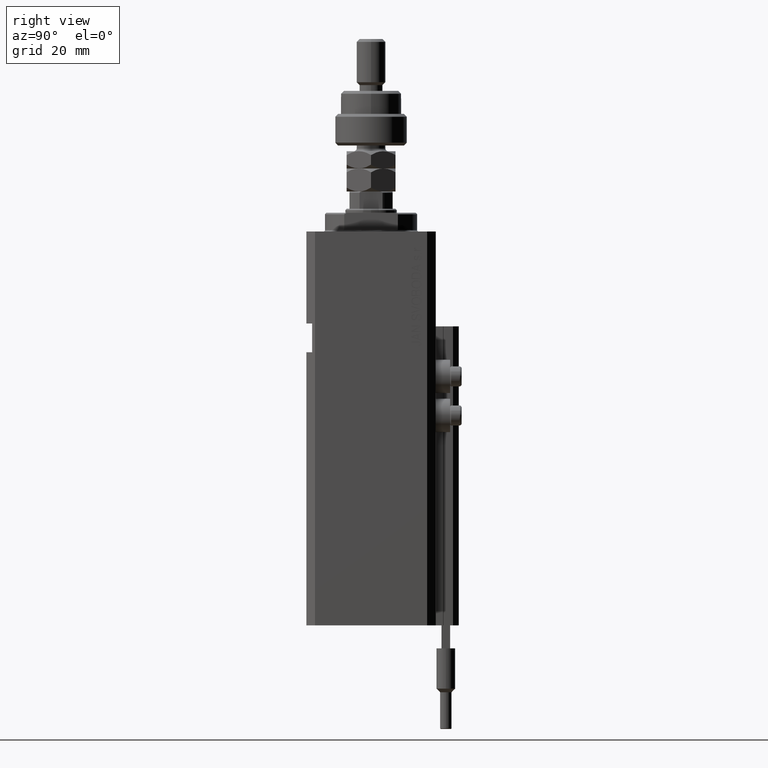
[diagram: clean part render]
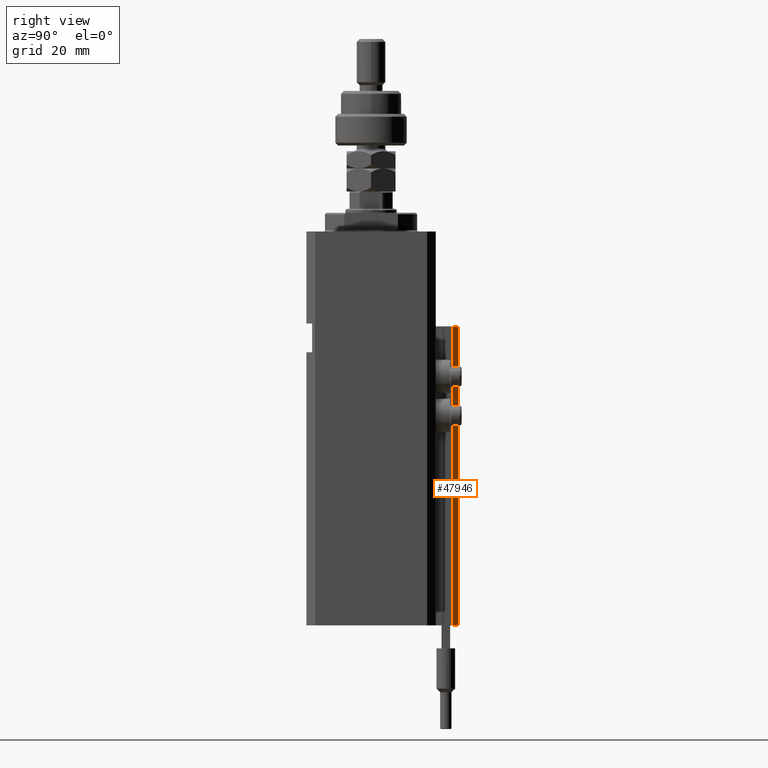
[diagram: same view with one face highlighted and labeled with its STEP entity id]
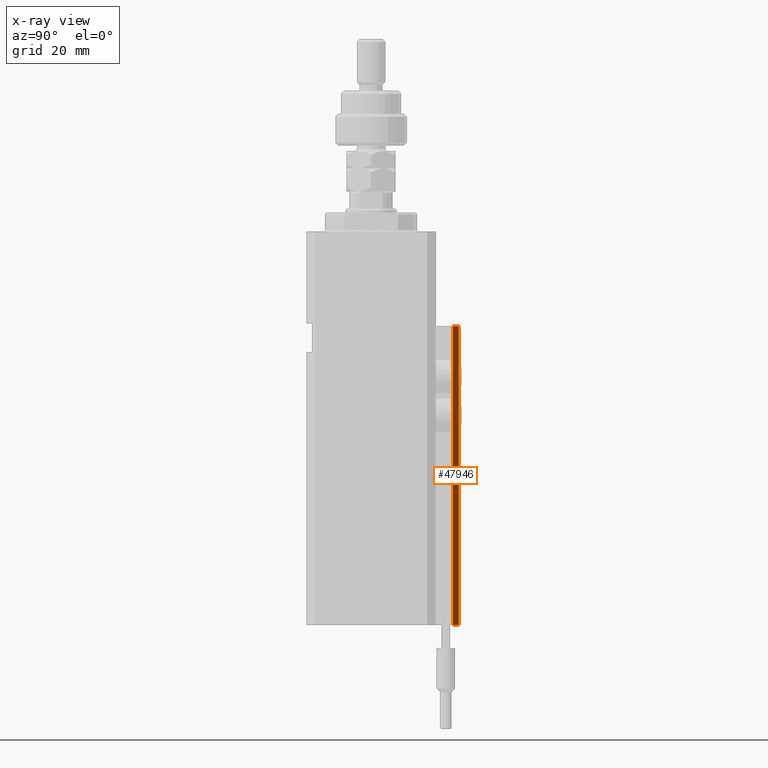
[diagram: x-ray of the same camera — body ghosted, the highlighted face saturated]
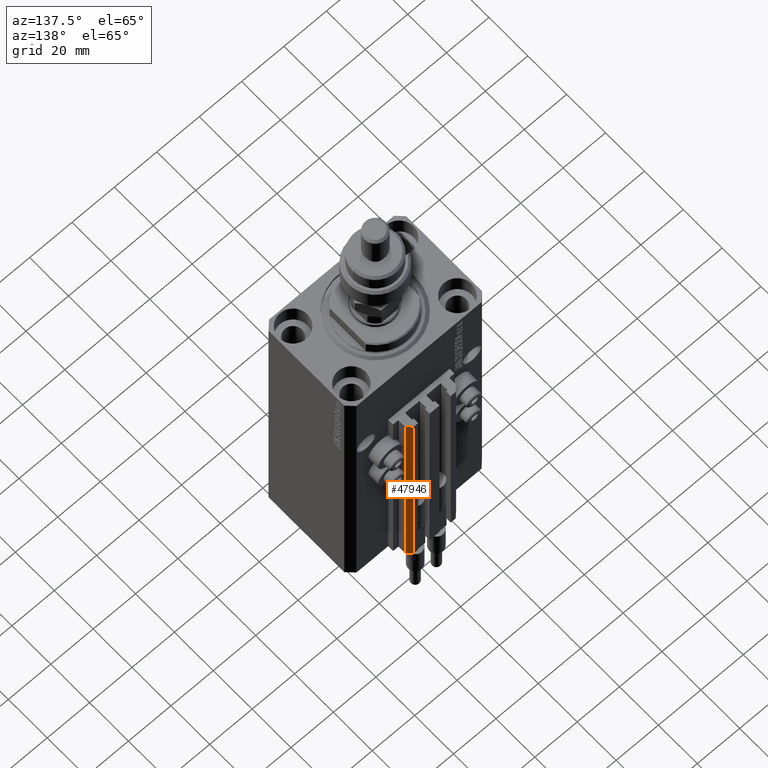
[diagram: same view with one face highlighted and labeled with its STEP entity id]
A machine part, right view. The second image highlights one B-rep face of the part: STEP entity #47946.
The next image is the same camera in x-ray: the body ghosted, the highlighted face saturated — about 0% of this face is hidden behind the body in this view.
A second angle (auxiliary view) of the same face is appended — the face is thin or edge-on in the first view.
In plain terms, the highlighted planar face has unit normal (0.7071, 0.7071, 0).
Its self-contained STEP definition (entity closure, byte-faithful):
#971 = CARTESIAN_POINT ( 'NONE',  ( 12.00000000000000178, 28.49999999999950973, -137.0000000000000000 ) ) ;
#4003 = EDGE_CURVE ( 'NONE', #42387, #26334, #28052, .T. ) ;
#4628 = DIRECTION ( 'NONE',  ( 0.000000000000000000, 0.000000000000000000, 1.000000000000000000 ) ) ;
#5409 = CARTESIAN_POINT ( 'NONE',  ( 12.00000000000000178, 28.49999999999950973, -137.0000000000000000 ) ) ;
#7601 = VECTOR ( 'NONE', #13507, 1000.000000000000000 ) ;
#8266 = PLANE ( 'NONE',  #17939 ) ;
#8501 = DIRECTION ( 'NONE',  ( -0.7071067811865507924, 0.7071067811865441310, 0.000000000000000000 ) ) ;
#11774 = DIRECTION ( 'NONE',  ( -0.7071067811865507924, 0.7071067811865441310, 0.000000000000000000 ) ) ;
#13314 = CARTESIAN_POINT ( 'NONE',  ( 9.999999999999994671, 30.49999999999949551, -137.0000000000000000 ) ) ;
#13507 = DIRECTION ( 'NONE',  ( 0.000000000000000000, 0.000000000000000000, 1.000000000000000000 ) ) ;
#15597 = EDGE_CURVE ( 'NONE', #42387, #46989, #40771, .T. ) ;
#16714 = DIRECTION ( 'NONE',  ( 0.7071067811865441310, 0.7071067811865509034, -0.000000000000000000 ) ) ;
#17939 = AXIS2_PLACEMENT_3D ( 'NONE', #19834, #16714, #20082 ) ;
#19194 = EDGE_CURVE ( 'NONE', #46989, #39316, #30813, .T. ) ;
#19834 = CARTESIAN_POINT ( 'NONE',  ( 12.00000000000000178, 28.49999999999950973, -137.0000000000000000 ) ) ;
#20082 = DIRECTION ( 'NONE',  ( -0.7071067811865509034, 0.7071067811865441310, 0.000000000000000000 ) ) ;
#20863 = VECTOR ( 'NONE', #11774, 1000.000000000000000 ) ;
#21080 = VECTOR ( 'NONE', #4628, 1000.000000000000000 ) ;
#21086 = CARTESIAN_POINT ( 'NONE',  ( 9.999999999999994671, 30.49999999999949551, -137.0000000000000000 ) ) ;
#22638 = CARTESIAN_POINT ( 'NONE',  ( 12.00000000000000178, 28.49999999999950973, -33.00000000000000000 ) ) ;
#22960 = CARTESIAN_POINT ( 'NONE',  ( 12.00000000000000178, 28.49999999999950973, -137.0000000000000000 ) ) ;
#23695 = FACE_OUTER_BOUND ( 'NONE', #44681, .T. ) ;
#25290 = ORIENTED_EDGE ( 'NONE', *, *, #4003, .T. ) ;
#26334 = VERTEX_POINT ( 'NONE', #21086 ) ;
#26692 = CARTESIAN_POINT ( 'NONE',  ( 12.00000000000000178, 28.49999999999950973, -33.00000000000000000 ) ) ;
#28052 = LINE ( 'NONE', #5409, #41768 ) ;
#28248 = ORIENTED_EDGE ( 'NONE', *, *, #39837, .T. ) ;
#30813 = LINE ( 'NONE', #26692, #20863 ) ;
#34824 = ORIENTED_EDGE ( 'NONE', *, *, #15597, .F. ) ;
#35973 = LINE ( 'NONE', #13314, #21080 ) ;
#37432 = ORIENTED_EDGE ( 'NONE', *, *, #19194, .F. ) ;
#39316 = VERTEX_POINT ( 'NONE', #44307 ) ;
#39837 = EDGE_CURVE ( 'NONE', #26334, #39316, #35973, .T. ) ;
#40771 = LINE ( 'NONE', #971, #7601 ) ;
#41768 = VECTOR ( 'NONE', #8501, 1000.000000000000000 ) ;
#42387 = VERTEX_POINT ( 'NONE', #22960 ) ;
#44307 = CARTESIAN_POINT ( 'NONE',  ( 9.999999999999994671, 30.49999999999949551, -33.00000000000000000 ) ) ;
#44681 = EDGE_LOOP ( 'NONE', ( #37432, #34824, #25290, #28248 ) ) ;
#46989 = VERTEX_POINT ( 'NONE', #22638 ) ;
#47946 = ADVANCED_FACE ( 'NONE', ( #23695 ), #8266, .T. ) ;